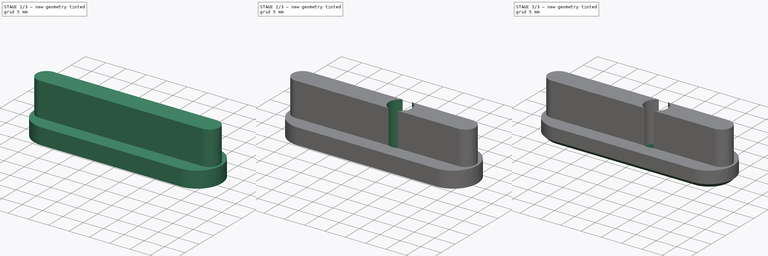
[diagram: build sequence overview — one tinted view per stage of 3, left to right]
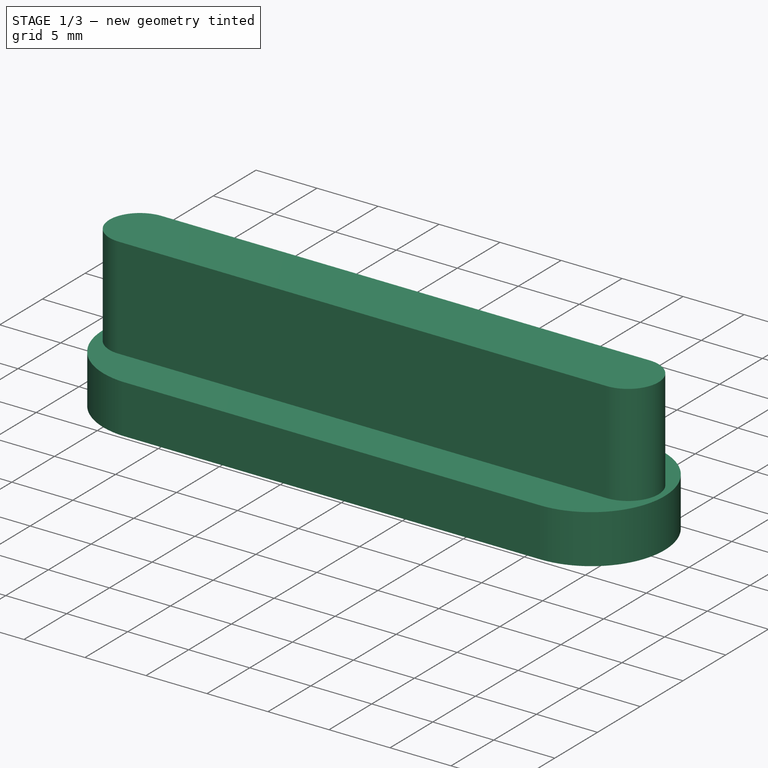
[diagram: stage 1 of 3 — iso view after this stage's code; geometry added in this stage tinted green]
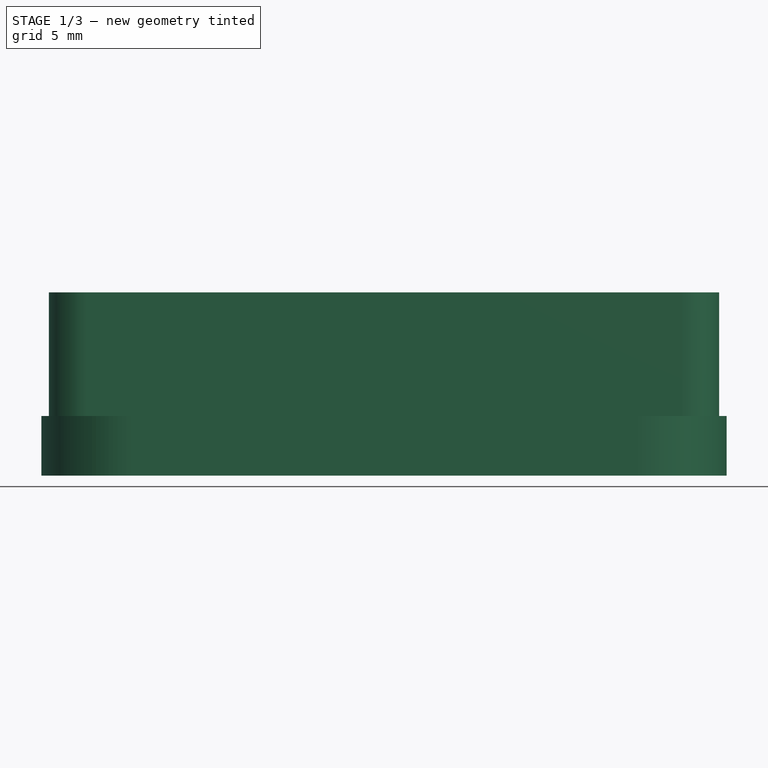
[diagram: stage 1 of 3 — front view after this stage's code; geometry added in this stage tinted green]
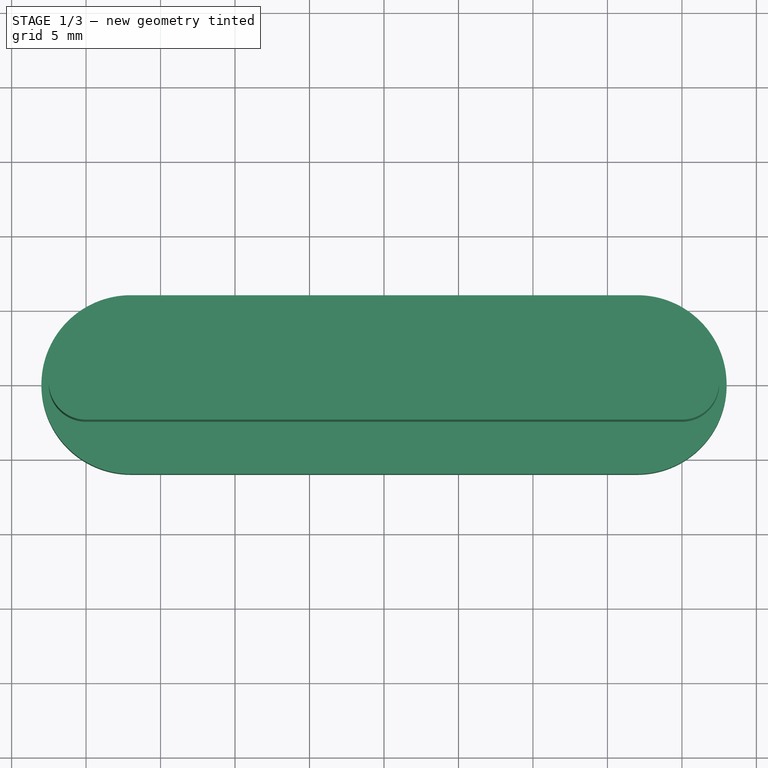
[diagram: stage 1 of 3 — top view after this stage's code; geometry added in this stage tinted green]
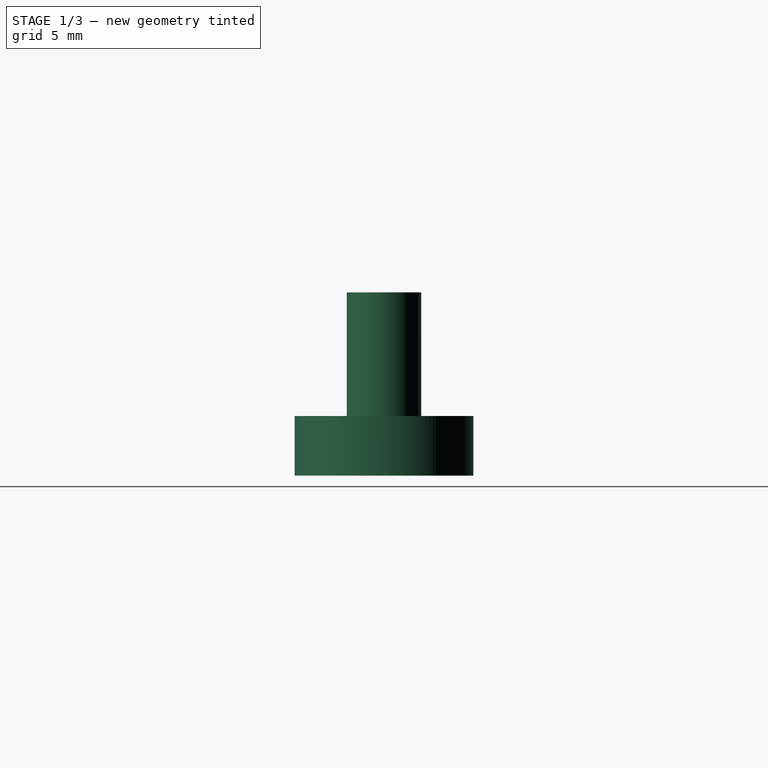
[diagram: stage 1 of 3 — right view after this stage's code; geometry added in this stage tinted green]
FCSTD DOCUMENT  (FreeCAD 0.16R6703 (Git))
Label: pnp board mount slide back
License: All rights reserved
LicenseURL: http://en.wikipedia.org/wiki/All_rights_reserved
objects: Sketcher::SketchObject×4, PartDesign::Pad×2, PartDesign::Pocket×2, PartDesign::Chamfer×1
note: 13 computed .brp shape members not serialized (recipe doc carries the construction recipe); baked Part::Feature solids carry a one-line shape summary decoded from their .brp

FEATURE [Sketcher::SketchObject] Sketch
  sketch-geometry (4):
    g0: ArcOfCircle CenterX=-17 CenterY=0 CenterZ=0 NormalX=0 NormalY=0 NormalZ=1 Radius=6 StartAngle=1.5708 EndAngle=4.71239
    g1: ArcOfCircle CenterX=17 CenterY=6.1e-11 CenterZ=0 NormalX=0 NormalY=0 NormalZ=1 Radius=6 StartAngle=4.71239 EndAngle=7.85398
    g2: LineSegment StartX=-17 StartY=-6 StartZ=0 EndX=17 EndY=-6 EndZ=0
    g3: LineSegment StartX=-17 StartY=6 StartZ=0 EndX=17 EndY=6 EndZ=0
  constraints (10):
    c: Tangent(g0,g3) = 1.5708
    c: Tangent(g0,g2) = -1.5708
    c: Tangent(g2,g1) = -1.5708
    c: Tangent(g3,g1) = 1.5708
    c: Horizontal(g2)
    c: Equal(g0,g1)
    c: PointOnObject(g0,g-1)
    c: Radius(g0) = 6
    c: Symmetric(g0,g1,g-2)
    c: DistanceX(g-1,g1) = 17
FEATURE [PartDesign::Pad] Pad
  Length = 4
  Length2 = 100
  Sketch = -> Sketch
  Type = 0
FEATURE [Sketcher::SketchObject] Sketch001
  Placement = pos=(0,0,4) rot=(0,0,1;0rad)
  Support = -> Pad [Face6]
  sketch-geometry (4):
    g0: ArcOfCircle CenterX=-20 CenterY=0 CenterZ=0 NormalX=0 NormalY=0 NormalZ=1 Radius=2.5 StartAngle=1.5708 EndAngle=4.71239
    g1: ArcOfCircle CenterX=20 CenterY=0 CenterZ=0 NormalX=0 NormalY=0 NormalZ=1 Radius=2.5 StartAngle=4.71239 EndAngle=7.85398
    g2: LineSegment StartX=-20 StartY=-2.5 StartZ=0 EndX=20 EndY=-2.5 EndZ=0
    g3: LineSegment StartX=-20 StartY=2.5 StartZ=0 EndX=20 EndY=2.5 EndZ=0
  constraints (10):
    c: Tangent(g0,g3) = 1.5708
    c: Tangent(g0,g2) = -1.5708
    c: Tangent(g2,g1) = -1.5708
    c: Tangent(g3,g1) = 1.5708
    c: Horizontal(g2)
    c: Equal(g0,g1)
    c: PointOnObject(g0,g-1)
    c: Radius(g1) = 2.5
    c: DistanceX(g-1,g1) = 20
    c: DistanceX(g0,g-1) = 20
FEATURE [PartDesign::Pad] Pad001
  Length = 8.3
  Length2 = 100
  Sketch = -> Sketch001
  Type = 0
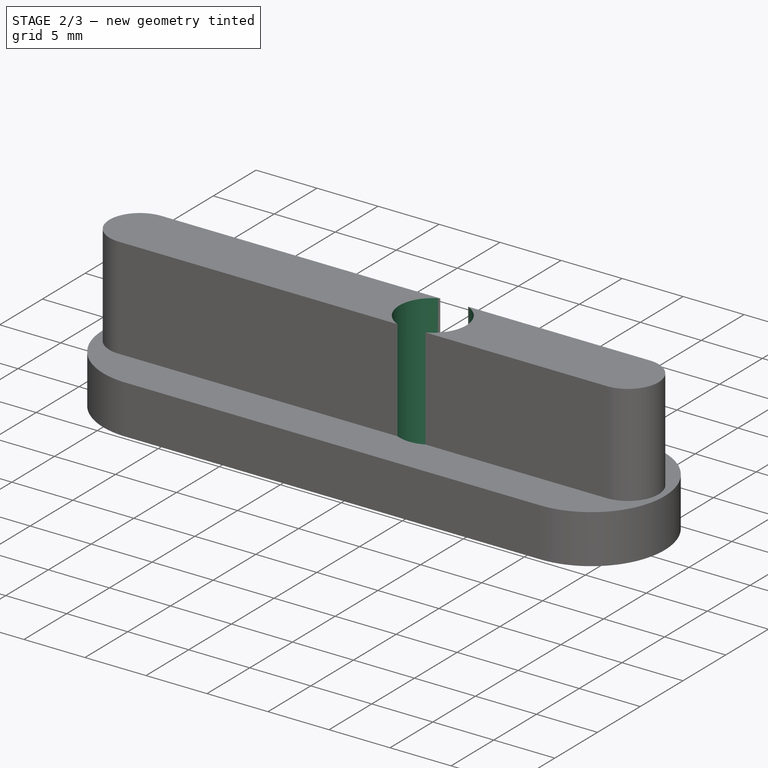
[diagram: stage 2 of 3 — iso view after this stage's code; geometry added in this stage tinted green]
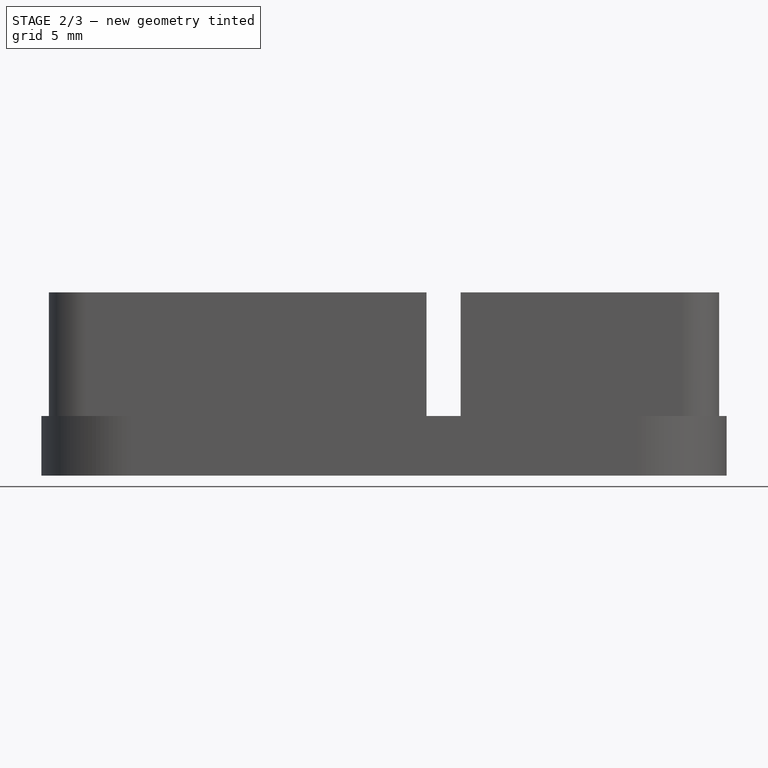
[diagram: stage 2 of 3 — front view after this stage's code; geometry added in this stage tinted green]
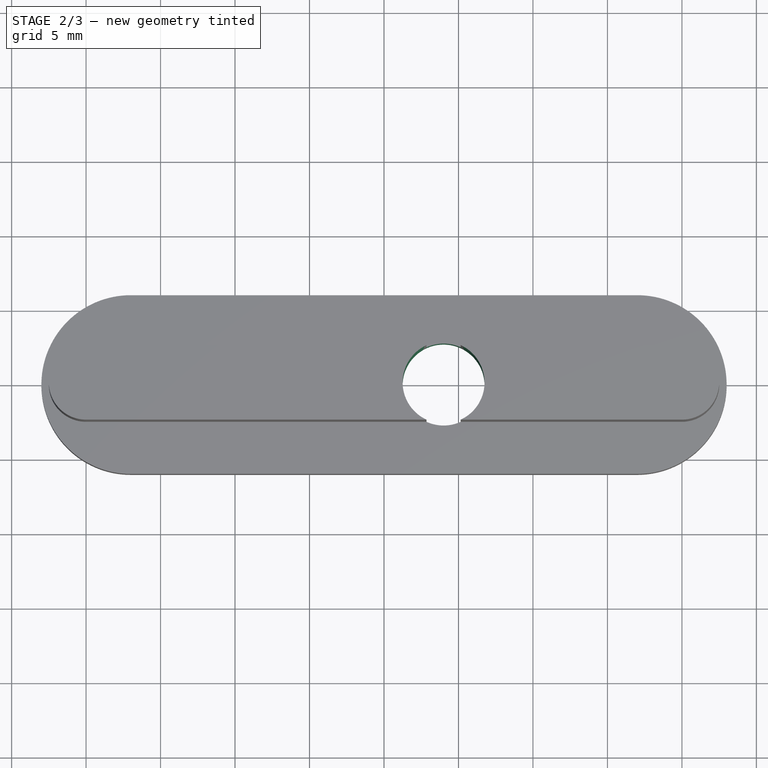
[diagram: stage 2 of 3 — top view after this stage's code; geometry added in this stage tinted green]
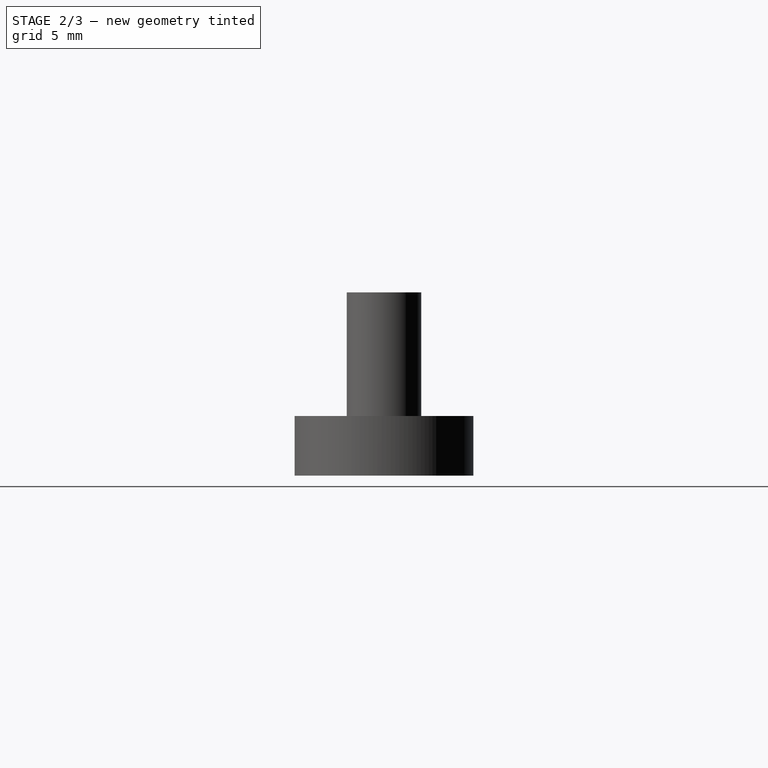
[diagram: stage 2 of 3 — right view after this stage's code; geometry added in this stage tinted green]
FEATURE [Sketcher::SketchObject] Sketch002
  Placement = pos=(0,0,12.3) rot=(0,0,1;0rad)
  Support = -> Pad001 [Face11]
  sketch-geometry (1):
    g0: Circle CenterX=4 CenterY=0 CenterZ=0 NormalX=0 NormalY=0 NormalZ=1 Radius=2.75
  constraints (3):
    c: Radius(g0) = 2.75
    c: PointOnObject(g0,g-1)
    c: DistanceX(g-1,g0) = 4
FEATURE [PartDesign::Pocket] Pocket
  Length = 5
  Sketch = -> Sketch002
  Type = 1
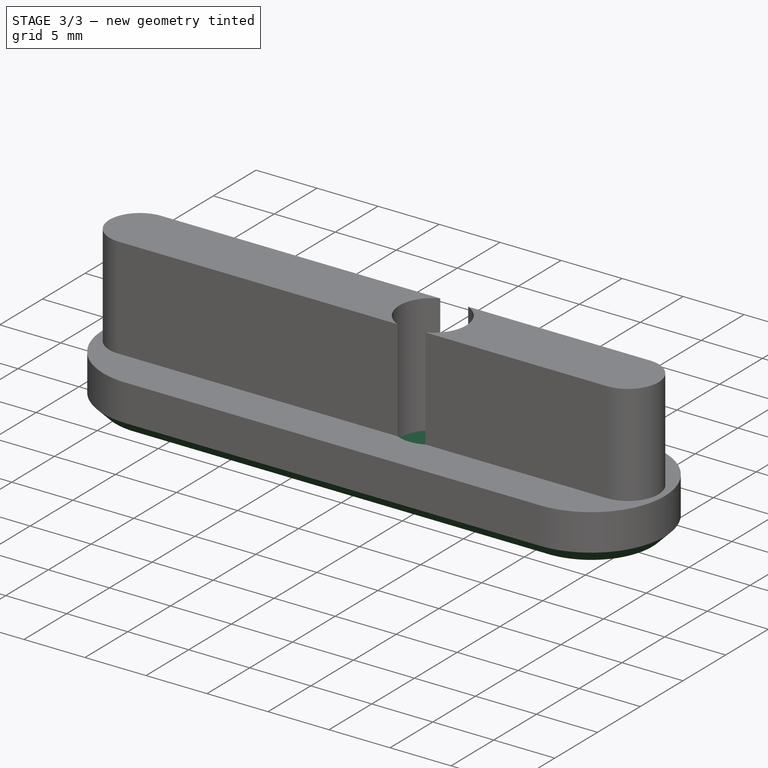
[diagram: stage 3 of 3 — iso view after this stage's code; geometry added in this stage tinted green]
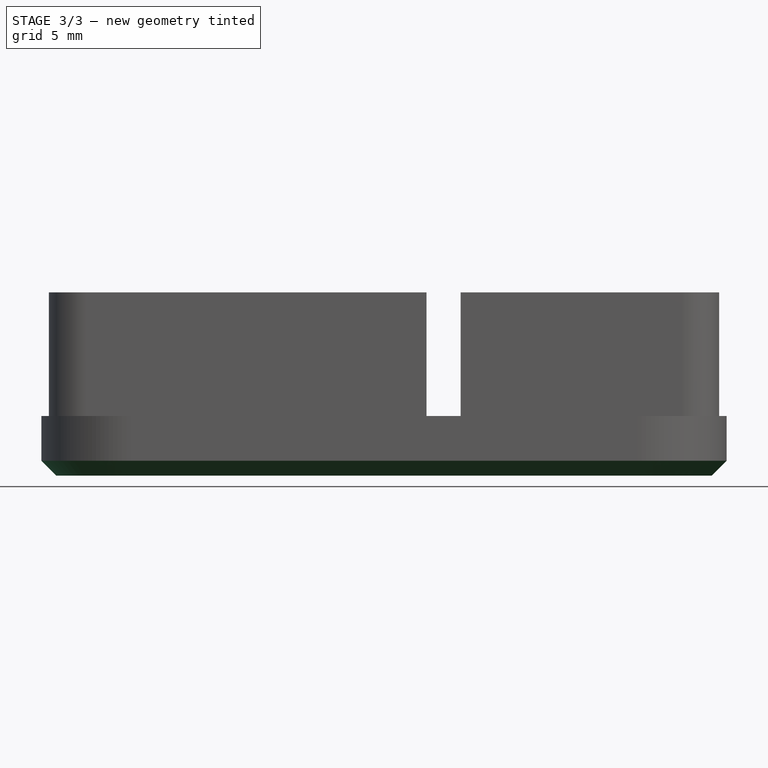
[diagram: stage 3 of 3 — front view after this stage's code; geometry added in this stage tinted green]
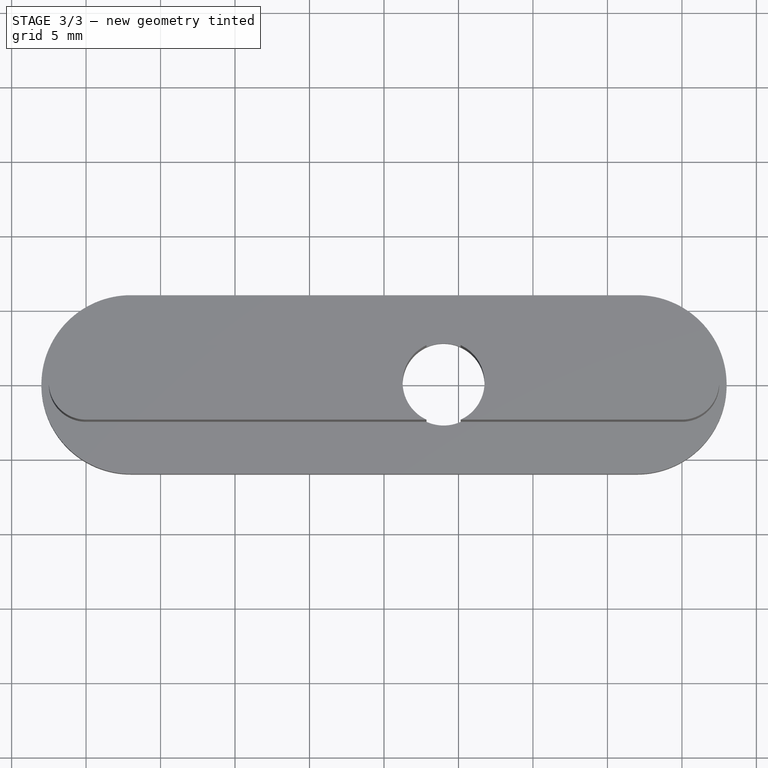
[diagram: stage 3 of 3 — top view after this stage's code; geometry added in this stage tinted green]
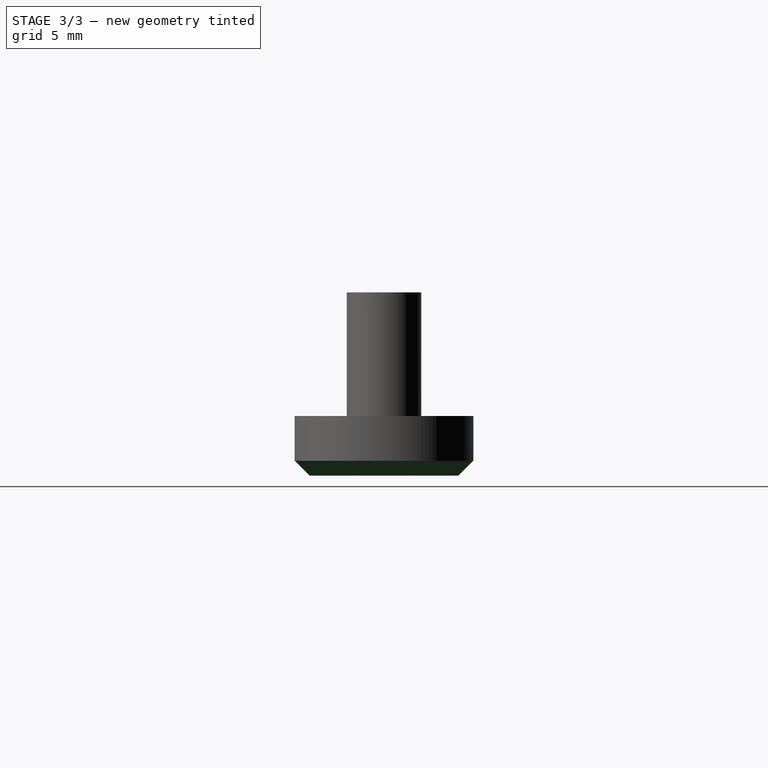
[diagram: stage 3 of 3 — right view after this stage's code; geometry added in this stage tinted green]
FEATURE [Sketcher::SketchObject] Sketch003
  Placement = pos=(0,0,0) rot=(1,0,0;3.14159rad)
  Support = -> Pocket [Face4]
  sketch-geometry (7):
    g0: LineSegment StartX=8.73427 StartY=0 StartZ=0 EndX=6.36714 EndY=4.1 EndZ=0
    g1: LineSegment StartX=6.36714 StartY=4.1 StartZ=0 EndX=1.63286 EndY=4.1 EndZ=0
    g2: LineSegment StartX=1.63286 StartY=4.1 StartZ=0 EndX=-0.734272 EndY=0 EndZ=0
    g3: LineSegment StartX=-0.734272 StartY=0 StartZ=0 EndX=1.63286 EndY=-4.1 EndZ=0
    g4: LineSegment StartX=1.63286 StartY=-4.1 StartZ=0 EndX=6.36714 EndY=-4.1 EndZ=0
    g5: LineSegment StartX=6.36714 StartY=-4.1 StartZ=0 EndX=8.73427 EndY=0 EndZ=0
    g6: Circle [constr] CenterX=4 CenterY=0 CenterZ=0 NormalX=0 NormalY=0 NormalZ=1 Radius=4.73427
  constraints (17):
    c: Coincident(g0,g1)
    c: Coincident(g1,g2)
    c: Coincident(g2,g3)
    c: Coincident(g3,g4)
    c: Coincident(g4,g5)
    c: Coincident(g5,g0)
    c: Equal(g0, g1-g5) x5
    c: PointOnObject(g0,g6)
    c: PointOnObject(g1,g6)
    c: PointOnObject(g2,g6)
    c: PointOnObject(g3,g6)
    c: PointOnObject(g4,g6)
    c: PointOnObject(g5,g6)
    c: Distance(g0,g4) = 8.2
    c: PointOnObject(g0,g-1)
    c: PointOnObject(g6,g-1)
    c: DistanceX(g-1,g6) = 4
FEATURE [PartDesign::Pocket] Pocket001
  Length = 2.5
  Sketch = -> Sketch003
  Type = 0
FEATURE [PartDesign::Chamfer] Chamfer
  Base = -> Pocket001 [Edge9]
  Size = 1
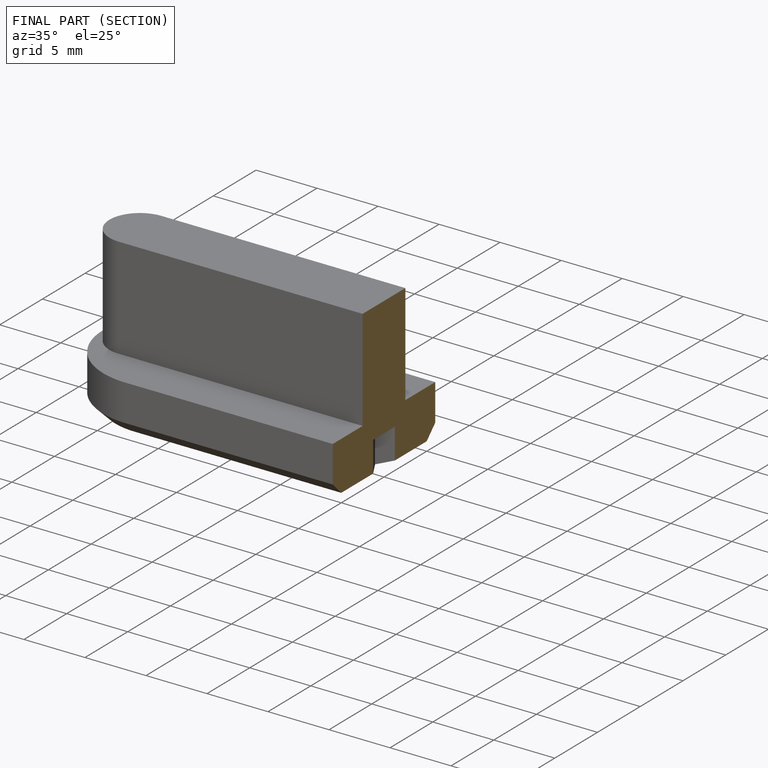
[diagram: finished part — half-section view (interior)]
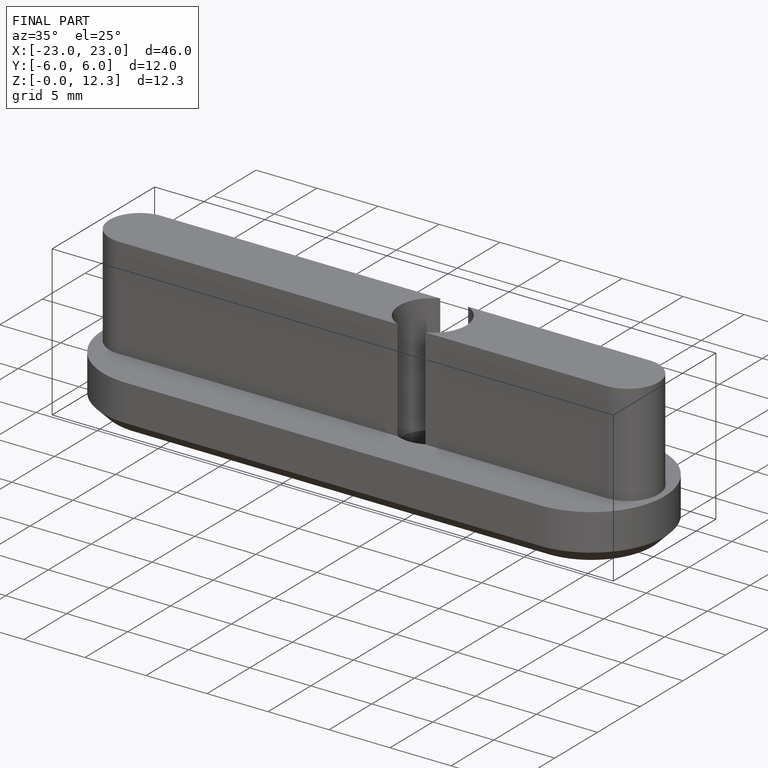
[diagram: finished part — iso view with bounding-box wireframe]
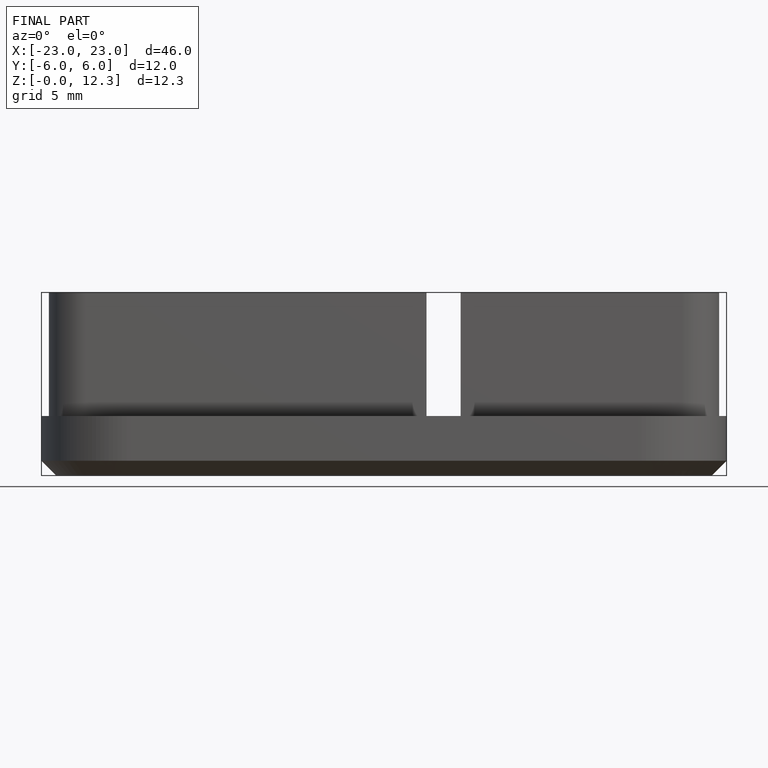
[diagram: finished part — front view with bounding-box wireframe]
